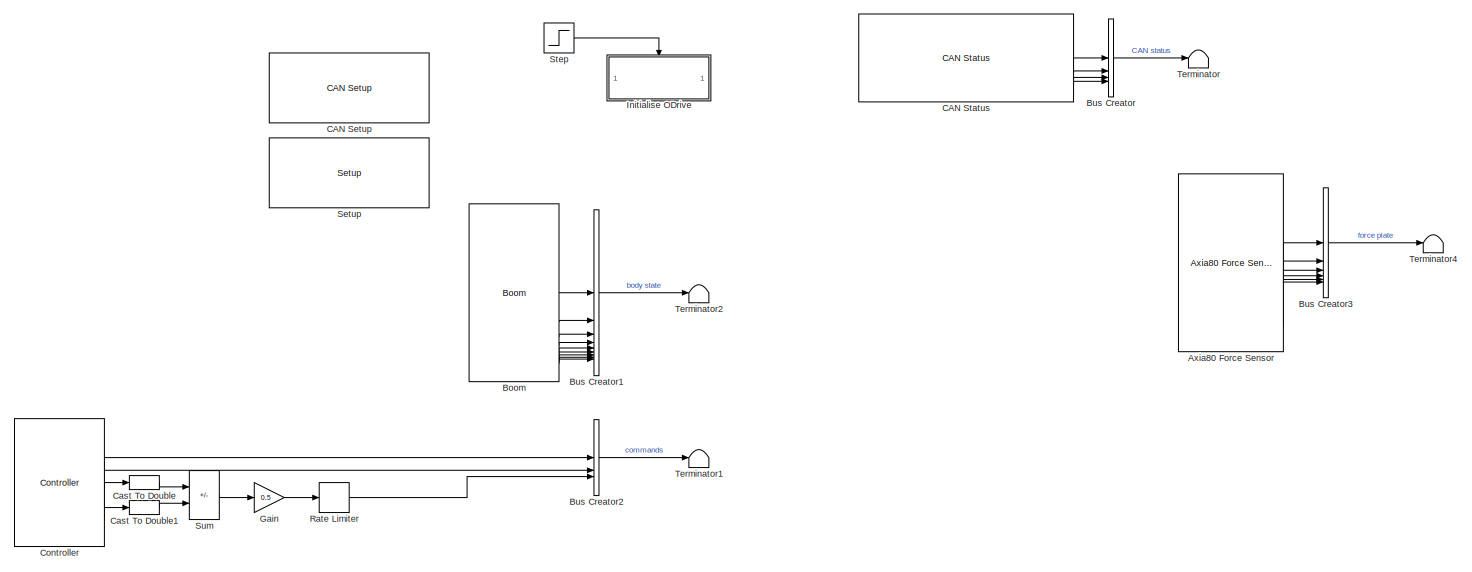
[diagram: root canvas - part 1/2, full width, top band]
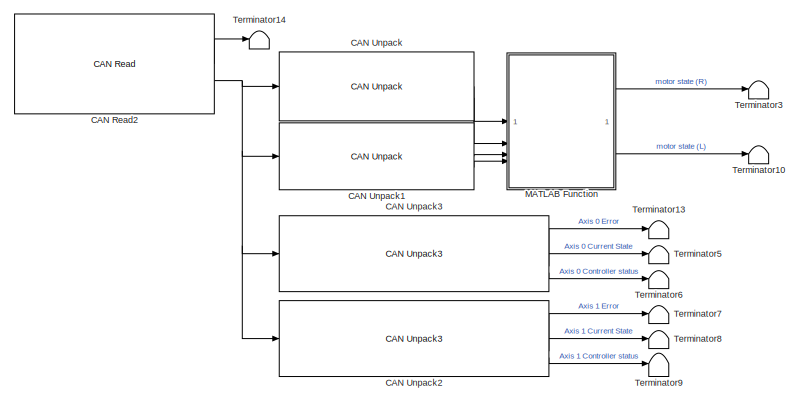
[diagram: root canvas - part 2/2, bottom center region]
MODEL slx_c104ee3d6ce8
KIND model
CONFIG AbsTol = auto
CONFIG EnableMultiTasking = on
CONFIG FixedStep = auto
CONFIG InitFcn = run('busObjects.m')
CONFIG MaxStep = auto
CONFIG MinStep = auto
CONFIG RelTol = 1e-3
CONFIG SampleTimeConstraint = Unconstrained
CONFIG SolverName = FixedStepDiscrete
CONFIG StartTime = 0.0
CONFIG StopTime = inf
BLOCK [Reference] Axia80 Force Sensor  REF=aru_toolbox/Axia80 Force Sensor
  Commented = on
  SourceBlock = aru_toolbox/Axia80 Force Sensor
  SourceProductName = ARU Toolbox
  SourceType = Axia80 Force Sensor
BLOCK [Reference] Boom  REF=aru_toolbox/Boom
  SourceBlock = aru_toolbox/Boom
  SourceProductName = ARU Toolbox
  SourceType = Boom Logger
BLOCK [BusCreator] Bus Creator
  DisplayOption = bar
  InheritFromInputs = off
  Inputs = 4
  NonVirtualBus = on
  OutDataTypeStr = Bus: CAN
BLOCK [BusCreator] Bus Creator1
  DisplayOption = bar
  InheritFromInputs = off
  Inputs = 9
  NonVirtualBus = on
  OutDataTypeStr = Bus: BodyStateO
BLOCK [BusCreator] Bus Creator2
  DisplayOption = bar
  InheritFromInputs = off
  Inputs = 3
  NonVirtualBus = on
  OutDataTypeStr = Bus: Command
BLOCK [BusCreator] Bus Creator3
  Commented = on
  DisplayOption = bar
  InheritFromInputs = off
  Inputs = 6
  NonVirtualBus = on
  OutDataTypeStr = Bus: ForceData
BLOCK [Reference] CAN Read2  REF=speedgoatlib_IO691/Legacy/CAN Read
  SourceBlock = speedgoatlib_IO691/Legacy/CAN Read
  SourceProductName = IO691
  SourceType = read_IO691
BLOCK [Reference] CAN Setup  REF=aru_toolbox/ODrive/CAN Setup
  SourceBlock = aru_toolbox/ODrive/CAN Setup
  SourceProductName = IO691
  SourceType = setup_IO691
BLOCK [Reference] CAN Status  REF=speedgoatlib_IO691/Legacy/CAN Status
  SourceBlock = speedgoatlib_IO691/Legacy/CAN Status
  SourceProductName = IO691
  SourceType = status_IO691
  UserDataPersistent = on
BLOCK [Reference] CAN Unpack  REF=aru_toolbox/ODrive/CAN Unpack
  SourceBlock = aru_toolbox/ODrive/CAN Unpack
  SourceType = CAN Unpack
BLOCK [Reference] CAN Unpack1  REF=aru_toolbox/ODrive/CAN Unpack
  SourceBlock = aru_toolbox/ODrive/CAN Unpack
  SourceType = CAN Unpack
BLOCK [Reference] CAN Unpack2  REF=aru_toolbox/ODrive/CAN Unpack3
  Commented = on
  SourceBlock = aru_toolbox/ODrive/CAN Unpack3
  SourceType = CAN Unpack
BLOCK [Reference] CAN Unpack3  REF=aru_toolbox/ODrive/CAN Unpack3
  Commented = on
  SourceBlock = aru_toolbox/ODrive/CAN Unpack3
  SourceType = CAN Unpack
BLOCK [DataTypeConversion] Cast To Double
  OutDataTypeStr = double
  RndMeth = Floor
  SaturateOnIntegerOverflow = off
BLOCK [DataTypeConversion] Cast To Double1
  OutDataTypeStr = double
  RndMeth = Floor
  SaturateOnIntegerOverflow = off
BLOCK [Reference] Controller  REF=aru_toolbox/Controller
  SourceBlock = aru_toolbox/Controller
  SourceProductName = ARU Toolbox
BLOCK [Gain] Gain
  Gain = 0.5
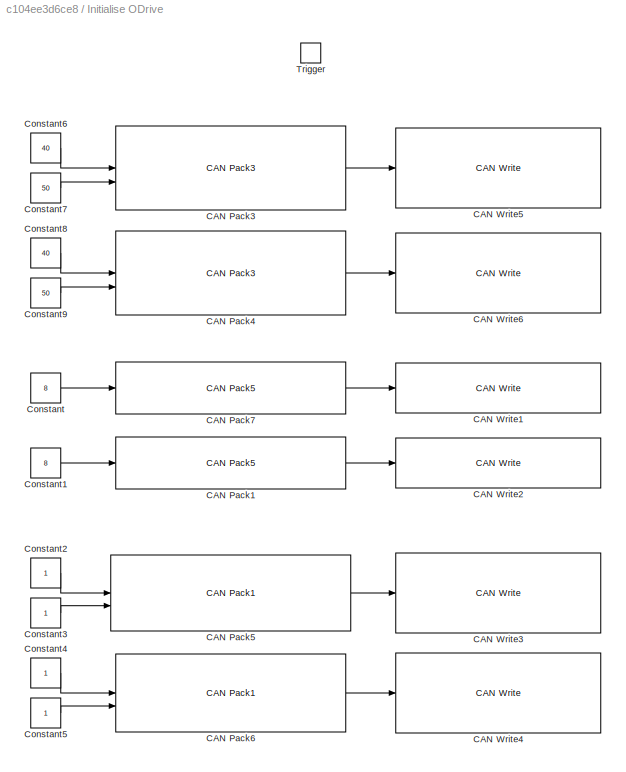
BLOCK [SubSystem] Initialise ODrive
  TreatAsAtomicUnit = on
BLOCK [Reference] Initialise ODrive/CAN Pack1  REF=aru_toolbox/ODrive/CAN Pack5
  SourceBlock = aru_toolbox/ODrive/CAN Pack5
  SourceType = CAN Pack
BLOCK [Reference] Initialise ODrive/CAN Pack3  REF=aru_toolbox/ODrive/CAN Pack3
  SourceBlock = aru_toolbox/ODrive/CAN Pack3
  SourceType = CAN Pack
BLOCK [Reference] Initialise ODrive/CAN Pack4  REF=aru_toolbox/ODrive/CAN Pack3
  SourceBlock = aru_toolbox/ODrive/CAN Pack3
  SourceType = CAN Pack
BLOCK [Reference] Initialise ODrive/CAN Pack5  REF=aru_toolbox/ODrive/CAN Pack1
  SourceBlock = aru_toolbox/ODrive/CAN Pack1
  SourceType = CAN Pack
BLOCK [Reference] Initialise ODrive/CAN Pack6  REF=aru_toolbox/ODrive/CAN Pack1
  SourceBlock = aru_toolbox/ODrive/CAN Pack1
  SourceType = CAN Pack
BLOCK [Reference] Initialise ODrive/CAN Pack7  REF=aru_toolbox/ODrive/CAN Pack5
  SourceBlock = aru_toolbox/ODrive/CAN Pack5
  SourceType = CAN Pack
BLOCK [Reference] Initialise ODrive/CAN Write1  REF=speedgoatlib_IO691/Legacy/CAN Write
  SourceBlock = speedgoatlib_IO691/Legacy/CAN Write
  SourceProductName = IO691
  SourceType = write_IO691
BLOCK [Reference] Initialise ODrive/CAN Write2  REF=speedgoatlib_IO691/Legacy/CAN Write
  SourceBlock = speedgoatlib_IO691/Legacy/CAN Write
  SourceProductName = IO691
  SourceType = write_IO691
BLOCK [Reference] Initialise ODrive/CAN Write3  REF=speedgoatlib_IO691/Legacy/CAN Write
  SourceBlock = speedgoatlib_IO691/Legacy/CAN Write
  SourceProductName = IO691
  SourceType = write_IO691
BLOCK [Reference] Initialise ODrive/CAN Write4  REF=speedgoatlib_IO691/Legacy/CAN Write
  SourceBlock = speedgoatlib_IO691/Legacy/CAN Write
  SourceProductName = IO691
  SourceType = write_IO691
BLOCK [Reference] Initialise ODrive/CAN Write5  REF=speedgoatlib_IO691/Legacy/CAN Write
  SourceBlock = speedgoatlib_IO691/Legacy/CAN Write
  SourceProductName = IO691
  SourceType = write_IO691
BLOCK [Reference] Initialise ODrive/CAN Write6  REF=speedgoatlib_IO691/Legacy/CAN Write
  SourceBlock = speedgoatlib_IO691/Legacy/CAN Write
  SourceProductName = IO691
  SourceType = write_IO691
BLOCK [Constant] Initialise ODrive/Constant
  Value = 8
BLOCK [Constant] Initialise ODrive/Constant1
  Value = 8
BLOCK [Constant] Initialise ODrive/Constant2
  OutDataTypeStr = int32
BLOCK [Constant] Initialise ODrive/Constant3
BLOCK [Constant] Initialise ODrive/Constant4
BLOCK [Constant] Initialise ODrive/Constant5
BLOCK [Constant] Initialise ODrive/Constant6
  Value = 40
BLOCK [Constant] Initialise ODrive/Constant7
  Value = 50
BLOCK [Constant] Initialise ODrive/Constant8
  Value = 40
BLOCK [Constant] Initialise ODrive/Constant9
  Value = 50
BLOCK [TriggerPort] Initialise ODrive/Trigger
  StatesWhenEnabling = held
  VariantControl = Variant
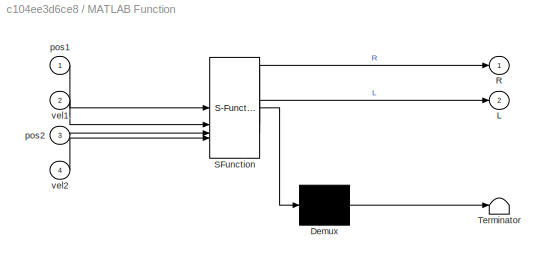
BLOCK [SubSystem] MATLAB Function
  ErrorFcn = Stateflow.Translate.translate
  PermitHierarchicalResolution = ExplicitOnly
  SFBlockType = MATLAB Function
  TreatAsAtomicUnit = on
BLOCK [Demux] MATLAB Function/ Demux 
  Outputs = 1
BLOCK [S-Function] MATLAB Function/ SFunction 
  EnableBusSupport = on
  FunctionName = sf_sfun
  PortCounts = [4 3]
  SFcnIsStateOwnerBlock = off
  SFunctionDeploymentMode = off
  Tag = Stateflow S-Function 2
BLOCK [Terminator] MATLAB Function/ Terminator 
BLOCK [Outport] MATLAB Function/L
  Port = 2
BLOCK [Outport] MATLAB Function/R
BLOCK [Inport] MATLAB Function/pos1
BLOCK [Inport] MATLAB Function/pos2
  Port = 3
BLOCK [Inport] MATLAB Function/vel1
  Port = 2
BLOCK [Inport] MATLAB Function/vel2
  Port = 4
BLOCK [RateLimiter] Rate Limiter
  FallingSlewLimit = -0.2
  RisingSlewLimit = 0.2
  SampleTimeMode = inherited
BLOCK [Reference] Setup   REF=speedgoatlib_IO291/Setup 
  SourceBlock = speedgoatlib_IO291/Setup
  SourceProductName = IO291
  SourceType = setup_IO291
BLOCK [Step] Step
  SampleTime = 0
BLOCK [Sum] Sum
  IconShape = rectangular
  Inputs = +-
BLOCK [Terminator] Terminator
BLOCK [Terminator] Terminator1
BLOCK [Terminator] Terminator10
BLOCK [Terminator] Terminator13
  Commented = on
BLOCK [Terminator] Terminator14
BLOCK [Terminator] Terminator2
BLOCK [Terminator] Terminator3
BLOCK [Terminator] Terminator4
BLOCK [Terminator] Terminator5
  Commented = on
BLOCK [Terminator] Terminator6
  Commented = on
BLOCK [Terminator] Terminator7
  Commented = on
BLOCK [Terminator] Terminator8
  Commented = on
BLOCK [Terminator] Terminator9
  Commented = on
LINE Axia80 Force Sensor:1 -> Bus Creator3:1
LINE Axia80 Force Sensor:2 -> Bus Creator3:2
LINE Axia80 Force Sensor:3 -> Bus Creator3:3
LINE Axia80 Force Sensor:4 -> Bus Creator3:4
LINE Axia80 Force Sensor:5 -> Bus Creator3:5
LINE Axia80 Force Sensor:6 -> Bus Creator3:6
LINE Boom:1 -> Bus Creator1:1
LINE Boom:2 -> Bus Creator1:2
LINE Boom:3 -> Bus Creator1:3
LINE Boom:4 -> Bus Creator1:4
LINE Boom:5 -> Bus Creator1:5
LINE Boom:6 -> Bus Creator1:6
LINE Boom:7 -> Bus Creator1:7
LINE Boom:8 -> Bus Creator1:8
LINE Boom:9 -> Bus Creator1:9
LINE Bus Creator1:1 -> Terminator2:1
LINE Bus Creator2:1 -> Terminator1:1
LINE Bus Creator3:1 -> Terminator4:1
LINE Bus Creator:1 -> Terminator:1
LINE CAN Read2:1 -> Terminator14:1
NET CAN Read2:2 -> CAN Unpack1:1, CAN Unpack2:1, CAN Unpack3:1, CAN Unpack:1
LINE CAN Status:1 -> Bus Creator:1
LINE CAN Status:2 -> Bus Creator:2
LINE CAN Status:3 -> Bus Creator:3
LINE CAN Status:4 -> Bus Creator:4
LINE CAN Unpack1:1 -> MATLAB Function:3
LINE CAN Unpack1:2 -> MATLAB Function:4
LINE CAN Unpack2:1 -> Terminator7:1
LINE CAN Unpack2:2 -> Terminator8:1
LINE CAN Unpack2:3 -> Terminator9:1
LINE CAN Unpack3:1 -> Terminator13:1
LINE CAN Unpack3:2 -> Terminator5:1
LINE CAN Unpack3:3 -> Terminator6:1
LINE CAN Unpack:1 -> MATLAB Function:1
LINE CAN Unpack:2 -> MATLAB Function:2
LINE Cast To Double1:1 -> Sum:2
LINE Cast To Double:1 -> Sum:1
LINE Controller:1 -> Bus Creator2:1
LINE Controller:2 -> Bus Creator2:2
LINE Controller:3 -> Cast To Double:1
LINE Controller:4 -> Cast To Double1:1
LINE Gain:1 -> Rate Limiter:1
LINE Initialise ODrive/CAN Pack1:1 -> Initialise ODrive/CAN Write2:1
LINE Initialise ODrive/CAN Pack3:1 -> Initialise ODrive/CAN Write5:1
LINE Initialise ODrive/CAN Pack4:1 -> Initialise ODrive/CAN Write6:1
LINE Initialise ODrive/CAN Pack5:1 -> Initialise ODrive/CAN Write3:1
LINE Initialise ODrive/CAN Pack6:1 -> Initialise ODrive/CAN Write4:1
LINE Initialise ODrive/CAN Pack7:1 -> Initialise ODrive/CAN Write1:1
LINE Initialise ODrive/Constant1:1 -> Initialise ODrive/CAN Pack1:1
LINE Initialise ODrive/Constant2:1 -> Initialise ODrive/CAN Pack5:1
LINE Initialise ODrive/Constant3:1 -> Initialise ODrive/CAN Pack5:2
LINE Initialise ODrive/Constant4:1 -> Initialise ODrive/CAN Pack6:1
LINE Initialise ODrive/Constant5:1 -> Initialise ODrive/CAN Pack6:2
LINE Initialise ODrive/Constant6:1 -> Initialise ODrive/CAN Pack3:1
LINE Initialise ODrive/Constant7:1 -> Initialise ODrive/CAN Pack3:2
LINE Initialise ODrive/Constant8:1 -> Initialise ODrive/CAN Pack4:1
LINE Initialise ODrive/Constant9:1 -> Initialise ODrive/CAN Pack4:2
LINE Initialise ODrive/Constant:1 -> Initialise ODrive/CAN Pack7:1
LINE MATLAB Function:1 -> Terminator3:1
LINE MATLAB Function:2 -> Terminator10:1
LINE Rate Limiter:1 -> Bus Creator2:3
LINE Step:1 -> Initialise ODrive:trigger
LINE Sum:1 -> Gain:1
note: NET lines group one-source signal fan-out (src -> all destinations, sorted); 1:1 wires keep LINE
CHART MATLAB Function states=1 transitions=1
  STATE_LABEL 'eML_blk_kernel()'
  STATE_LABEL 'SCRIPT:\nfunction [R,L] = motor2hip(pos1, vel1, pos2, vel2) %#codegen\nN = 6;\nfemurTaper = 0.080111; %rad\n\nactualR = -0.2971;\nactualL = -0.0555;\n\noffsetR = femurTaper - actualR;\noffsetL = pi - femurTaper - actualL;\n\n% offsetR = 0;\n% offsetL = 0;\n% ODrive uses units turns and turns/s so need to explicity convert to\n% radians\nR.q = pos1*2*pi/N + offsetR;\nR.w = vel1*2*pi/N;\nL.q = pos2*2*pi/N + offsetL;...<+24ch>'
CHART  states=0 transitions=0
